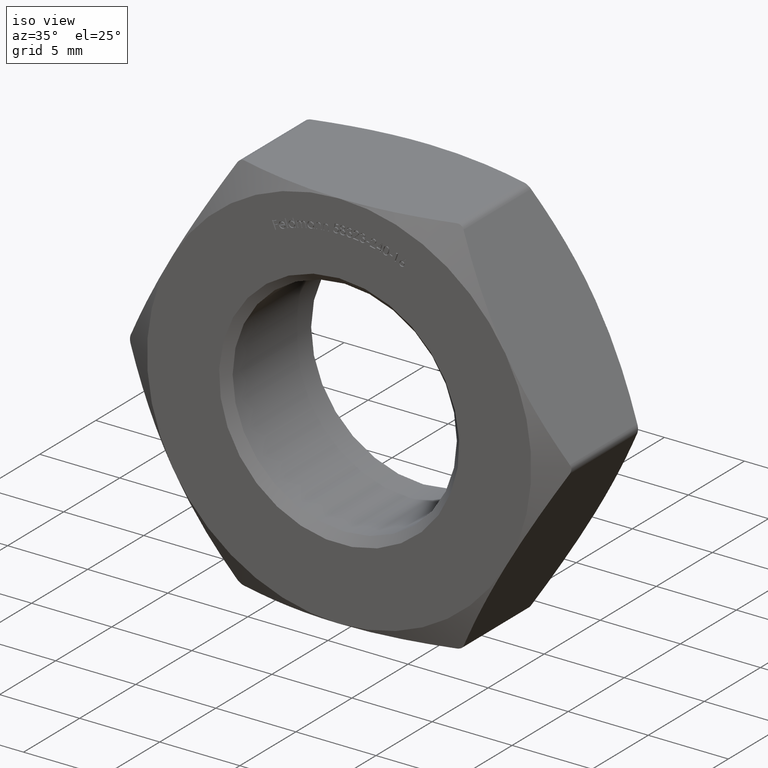
[diagram: clean part render]
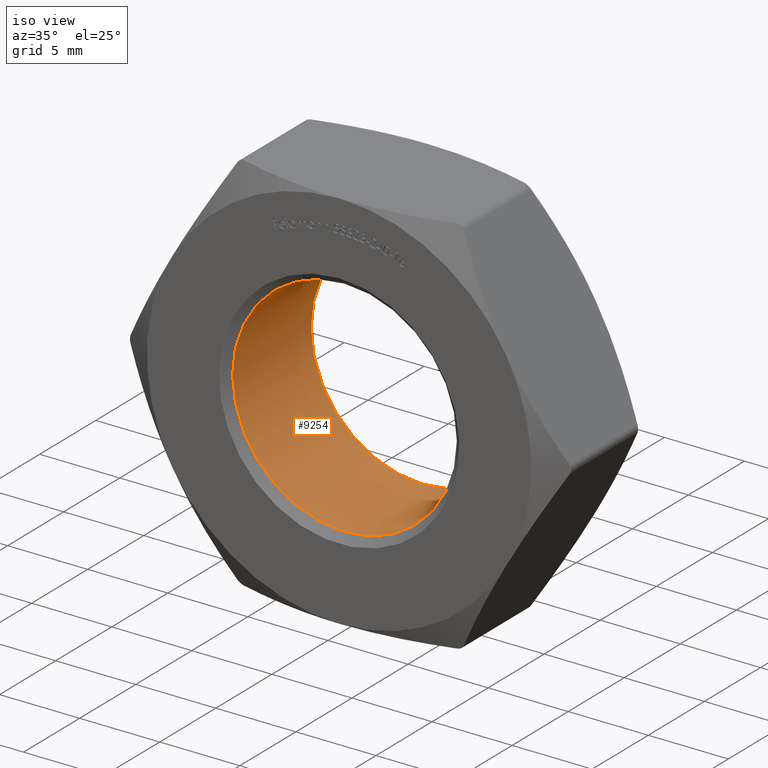
[diagram: same view with one face highlighted and labeled with its STEP entity id]
A machine part, iso view. The second image highlights one B-rep face of the part: STEP entity #9254.
In plain terms, the highlighted cylindrical surface (bore or boss wall) has radius 7 mm, axis along (-0, 1, -0).
Its self-contained STEP definition (entity closure, byte-faithful):
#27 = DIRECTION ( 'NONE',  ( 0.0000000000000000000, 0.0000000000000000000, 1.000000000000000000 ) ) ;
#82 = CARTESIAN_POINT ( 'NONE',  ( 0.0000000000000000000, -3.499999999999994200, 0.0000000000000000000 ) ) ;
#133 = CIRCLE ( 'NONE', #8548, 6.999999999999998200 ) ;
#292 = AXIS2_PLACEMENT_3D ( 'NONE', #82, #2698, #27 ) ;
#431 = CARTESIAN_POINT ( 'NONE',  ( 0.0000000000000000000, 3.499999999999999600, 6.999999999999998200 ) ) ;
#818 = EDGE_CURVE ( 'NONE', #1496, #1496, #9302, .T. ) ;
#880 = ORIENTED_EDGE ( 'NONE', *, *, #13528, .T. ) ;
#1411 = DIRECTION ( 'NONE',  ( -0.0000000000000000000, 1.000000000000000000, -0.0000000000000000000 ) ) ;
#1496 = VERTEX_POINT ( 'NONE', #13291 ) ;
#2358 = EDGE_LOOP ( 'NONE', ( #13507 ) ) ;
#2551 = DIRECTION ( 'NONE',  ( 0.0000000000000000000, 0.0000000000000000000, 1.000000000000000000 ) ) ;
#2698 = DIRECTION ( 'NONE',  ( -0.0000000000000000000, -1.000000000000000000, -0.0000000000000000000 ) ) ;
#2991 = DIRECTION ( 'NONE',  ( 0.0000000000000000000, 0.0000000000000000000, 1.000000000000000000 ) ) ;
#3206 = EDGE_LOOP ( 'NONE', ( #880 ) ) ;
#4947 = VERTEX_POINT ( 'NONE', #431 ) ;
#6904 = AXIS2_PLACEMENT_3D ( 'NONE', #12826, #1411, #2991 ) ;
#8548 = AXIS2_PLACEMENT_3D ( 'NONE', #10159, #14049, #2551 ) ;
#8655 = CYLINDRICAL_SURFACE ( 'NONE', #6904, 6.999999999999998200 ) ;
#9254 = ADVANCED_FACE ( 'NONE', ( #10298, #13308 ), #8655, .F. ) ;
#9302 = CIRCLE ( 'NONE', #292, 6.999999999999998200 ) ;
#10159 = CARTESIAN_POINT ( 'NONE',  ( 0.0000000000000000000, 3.499999999999999600, 0.0000000000000000000 ) ) ;
#10298 = FACE_OUTER_BOUND ( 'NONE', #3206, .T. ) ;
#12826 = CARTESIAN_POINT ( 'NONE',  ( 0.0000000000000000000, 4.000000000000000000, 0.0000000000000000000 ) ) ;
#13291 = CARTESIAN_POINT ( 'NONE',  ( 0.0000000000000000000, -3.499999999999994200, 6.999999999999998200 ) ) ;
#13308 = FACE_OUTER_BOUND ( 'NONE', #2358, .T. ) ;
#13507 = ORIENTED_EDGE ( 'NONE', *, *, #818, .T. ) ;
#13528 = EDGE_CURVE ( 'NONE', #4947, #4947, #133, .T. ) ;
#14049 = DIRECTION ( 'NONE',  ( 0.0000000000000000000, 1.000000000000000000, 0.0000000000000000000 ) ) ;